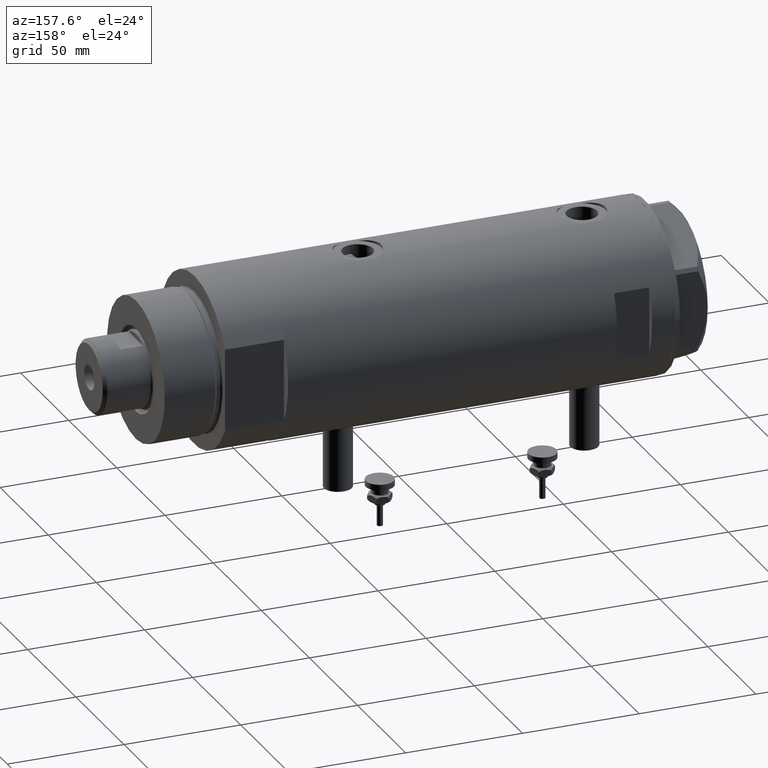
[diagram: clean part render]
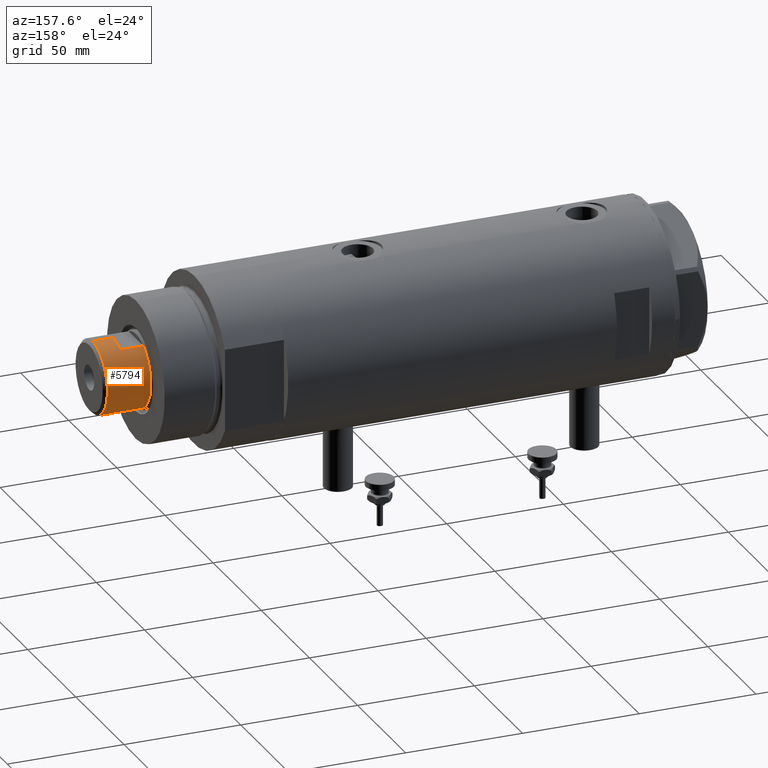
[diagram: same view with one face highlighted and labeled with its STEP entity id]
A machine part, auxiliary view. The second image highlights one B-rep face of the part: STEP entity #5794.
In plain terms, the highlighted cylindrical surface (partial cylindrical patch) has radius 15.5 mm, axis along (-1, -0, 0).
Its self-contained STEP definition (entity closure, byte-faithful):
#40 = AXIS2_PLACEMENT_3D ( 'NONE', #4421, #687, #284 ) ;
#42 = ORIENTED_EDGE ( 'NONE', *, *, #5871, .T. ) ;
#282 = ORIENTED_EDGE ( 'NONE', *, *, #4185, .T. ) ;
#284 = DIRECTION ( 'NONE',  ( 1.000000000000000000, 0.000000000000000000, 0.000000000000000000 ) ) ;
#370 = CARTESIAN_POINT ( 'NONE',  ( 15.50000000000000178, 1.898202538678397557E-15, 200.0000000000000000 ) ) ;
#507 = CARTESIAN_POINT ( 'NONE',  ( 15.49999999999999822, 1.898202538678397163E-15, 208.5999999999999659 ) ) ;
#586 = DIRECTION ( 'NONE',  ( -1.000000000000000000, 0.000000000000000000, 0.000000000000000000 ) ) ;
#644 = CARTESIAN_POINT ( 'NONE',  ( -15.50000000000000178, 0.000000000000000000, 200.0000000000000000 ) ) ;
#687 = DIRECTION ( 'NONE',  ( 0.000000000000000000, 0.000000000000000000, 1.000000000000000000 ) ) ;
#719 = LINE ( 'NONE', #5783, #2887 ) ;
#815 = CARTESIAN_POINT ( 'NONE',  ( 0.000000000000000000, 0.000000000000000000, 200.0000000000000000 ) ) ;
#989 = VERTEX_POINT ( 'NONE', #5376 ) ;
#1044 = DIRECTION ( 'NONE',  ( 1.000000000000000000, 0.000000000000000000, 0.000000000000000000 ) ) ;
#1324 = CARTESIAN_POINT ( 'NONE',  ( 13.48630416385452868, 7.639999999999997904, 200.0000000000000000 ) ) ;
#1419 = VERTEX_POINT ( 'NONE', #4754 ) ;
#1423 = CARTESIAN_POINT ( 'NONE',  ( 15.49999999999999822, 1.898202538678397163E-15, 200.0000000000000000 ) ) ;
#1449 = VERTEX_POINT ( 'NONE', #4612 ) ;
#1456 = DIRECTION ( 'NONE',  ( -0.000000000000000000, -0.000000000000000000, -1.000000000000000000 ) ) ;
#1477 = AXIS2_PLACEMENT_3D ( 'NONE', #815, #3129, #4960 ) ;
#1613 = EDGE_LOOP ( 'NONE', ( #4931, #282, #3252, #42, #5610, #2771, #5734, #3894 ) ) ;
#1620 = EDGE_CURVE ( 'NONE', #5283, #2653, #3016, .T. ) ;
#1654 = EDGE_CURVE ( 'NONE', #3091, #989, #1850, .T. ) ;
#1724 = DIRECTION ( 'NONE',  ( 0.000000000000000000, 0.000000000000000000, 1.000000000000000000 ) ) ;
#1850 = CIRCLE ( 'NONE', #1477, 15.50000000000000000 ) ;
#2032 = EDGE_CURVE ( 'NONE', #5283, #4174, #719, .T. ) ;
#2168 = CYLINDRICAL_SURFACE ( 'NONE', #4022, 15.49999999999999822 ) ;
#2227 = CARTESIAN_POINT ( 'NONE',  ( 0.000000000000000000, 0.000000000000000000, 200.0000000000000000 ) ) ;
#2396 = DIRECTION ( 'NONE',  ( 0.000000000000000000, 0.000000000000000000, -1.000000000000000000 ) ) ;
#2615 = FACE_OUTER_BOUND ( 'NONE', #1613, .T. ) ;
#2653 = VERTEX_POINT ( 'NONE', #644 ) ;
#2771 = ORIENTED_EDGE ( 'NONE', *, *, #2032, .F. ) ;
#2799 = CARTESIAN_POINT ( 'NONE',  ( -13.48630416385452513, 7.639999999999917968, 190.0000000000000000 ) ) ;
#2826 = VERTEX_POINT ( 'NONE', #507 ) ;
#2866 = LINE ( 'NONE', #1423, #3617 ) ;
#2887 = VECTOR ( 'NONE', #3070, 1000.000000000000000 ) ;
#3016 = CIRCLE ( 'NONE', #3300, 15.50000000000000000 ) ;
#3040 = LINE ( 'NONE', #1324, #3153 ) ;
#3070 = DIRECTION ( 'NONE',  ( -0.000000000000000000, -0.000000000000000000, -1.000000000000000000 ) ) ;
#3091 = VERTEX_POINT ( 'NONE', #370 ) ;
#3094 = CARTESIAN_POINT ( 'NONE',  ( 0.000000000000000000, 0.000000000000000000, 200.0000000000000000 ) ) ;
#3129 = DIRECTION ( 'NONE',  ( 0.000000000000000000, 0.000000000000000000, 1.000000000000000000 ) ) ;
#3153 = VECTOR ( 'NONE', #4564, 1000.000000000000000 ) ;
#3252 = ORIENTED_EDGE ( 'NONE', *, *, #1654, .T. ) ;
#3300 = AXIS2_PLACEMENT_3D ( 'NONE', #2227, #1724, #5320 ) ;
#3316 = CIRCLE ( 'NONE', #40, 15.49999999999995737 ) ;
#3444 = CIRCLE ( 'NONE', #5263, 15.49999999999999822 ) ;
#3586 = EDGE_CURVE ( 'NONE', #1449, #4174, #3316, .T. ) ;
#3617 = VECTOR ( 'NONE', #5175, 1000.000000000000000 ) ;
#3816 = CARTESIAN_POINT ( 'NONE',  ( 0.000000000000000000, 0.000000000000000000, 208.5999999999999659 ) ) ;
#3894 = ORIENTED_EDGE ( 'NONE', *, *, #4053, .F. ) ;
#4022 = AXIS2_PLACEMENT_3D ( 'NONE', #3094, #1456, #586 ) ;
#4024 = CARTESIAN_POINT ( 'NONE',  ( -15.49999999999999822, 0.000000000000000000, 200.0000000000000000 ) ) ;
#4053 = EDGE_CURVE ( 'NONE', #1419, #2653, #4069, .T. ) ;
#4069 = LINE ( 'NONE', #4024, #4289 ) ;
#4174 = VERTEX_POINT ( 'NONE', #2799 ) ;
#4185 = EDGE_CURVE ( 'NONE', #2826, #3091, #2866, .T. ) ;
#4211 = CARTESIAN_POINT ( 'NONE',  ( -13.48630416385452868, 7.639999999999998792, 200.0000000000000000 ) ) ;
#4289 = VECTOR ( 'NONE', #5019, 1000.000000000000000 ) ;
#4421 = CARTESIAN_POINT ( 'NONE',  ( 0.000000000000000000, 0.000000000000000000, 190.0000000000000000 ) ) ;
#4564 = DIRECTION ( 'NONE',  ( -0.000000000000000000, -0.000000000000000000, -1.000000000000000000 ) ) ;
#4612 = CARTESIAN_POINT ( 'NONE',  ( 13.48630416385452868, 7.639999999999997904, 190.0000000000000000 ) ) ;
#4754 = CARTESIAN_POINT ( 'NONE',  ( -15.49999999999999822, 0.000000000000000000, 208.5999999999999659 ) ) ;
#4931 = ORIENTED_EDGE ( 'NONE', *, *, #5700, .T. ) ;
#4960 = DIRECTION ( 'NONE',  ( 1.000000000000000000, 0.000000000000000000, 0.000000000000000000 ) ) ;
#5019 = DIRECTION ( 'NONE',  ( -0.000000000000000000, -0.000000000000000000, -1.000000000000000000 ) ) ;
#5175 = DIRECTION ( 'NONE',  ( -0.000000000000000000, -0.000000000000000000, -1.000000000000000000 ) ) ;
#5263 = AXIS2_PLACEMENT_3D ( 'NONE', #3816, #2396, #1044 ) ;
#5283 = VERTEX_POINT ( 'NONE', #4211 ) ;
#5320 = DIRECTION ( 'NONE',  ( 1.000000000000000000, 0.000000000000000000, 0.000000000000000000 ) ) ;
#5376 = CARTESIAN_POINT ( 'NONE',  ( 13.48630416385452868, 7.639999999999997904, 200.0000000000000000 ) ) ;
#5610 = ORIENTED_EDGE ( 'NONE', *, *, #3586, .T. ) ;
#5700 = EDGE_CURVE ( 'NONE', #1419, #2826, #3444, .T. ) ;
#5734 = ORIENTED_EDGE ( 'NONE', *, *, #1620, .T. ) ;
#5783 = CARTESIAN_POINT ( 'NONE',  ( -13.48630416385452868, 7.639999999999998792, 200.0000000000000000 ) ) ;
#5794 = ADVANCED_FACE ( 'NONE', ( #2615 ), #2168, .T. ) ;
#5871 = EDGE_CURVE ( 'NONE', #989, #1449, #3040, .T. ) ;